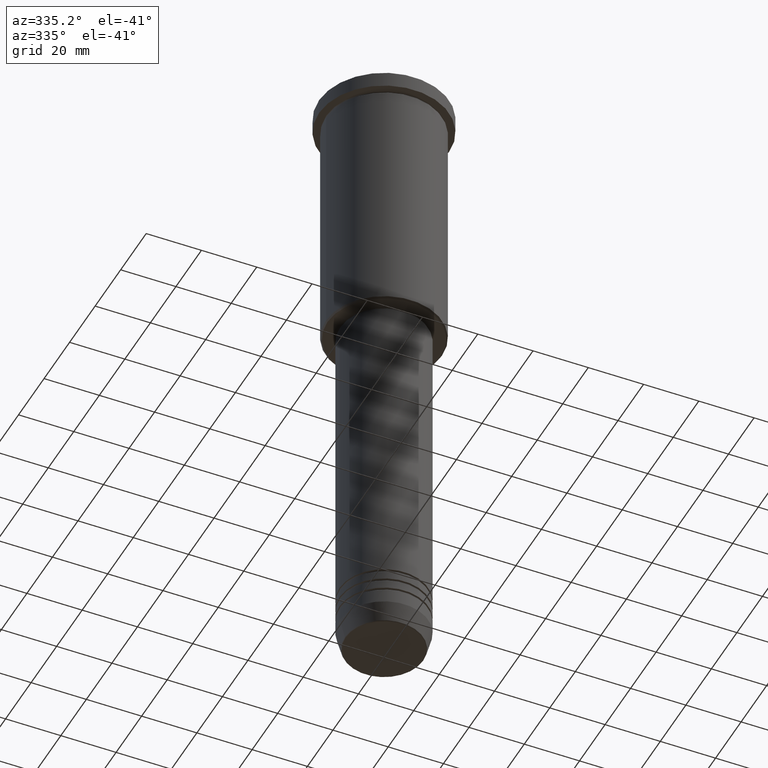
[diagram: clean part render]
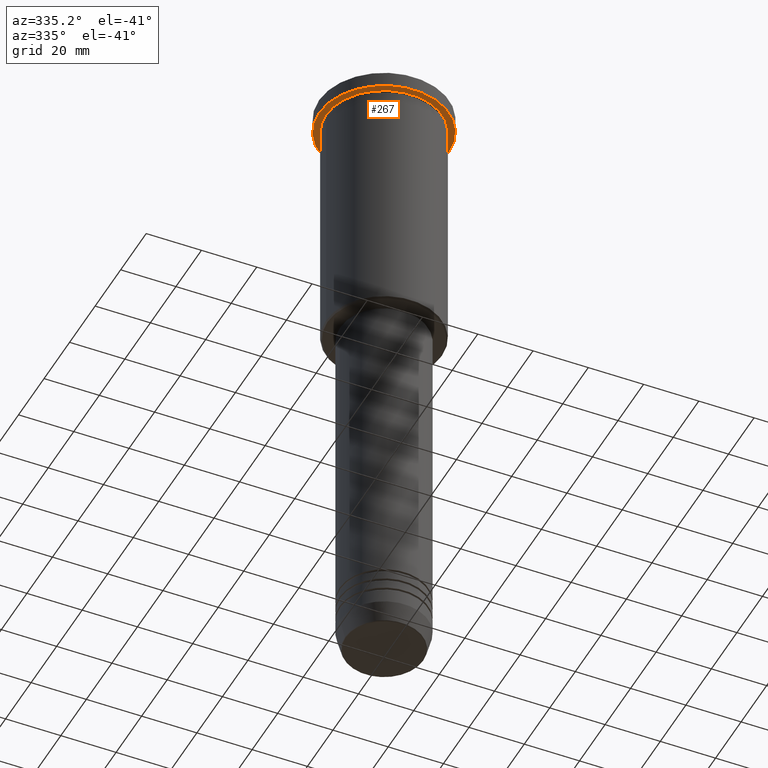
[diagram: same view with one face highlighted and labeled with its STEP entity id]
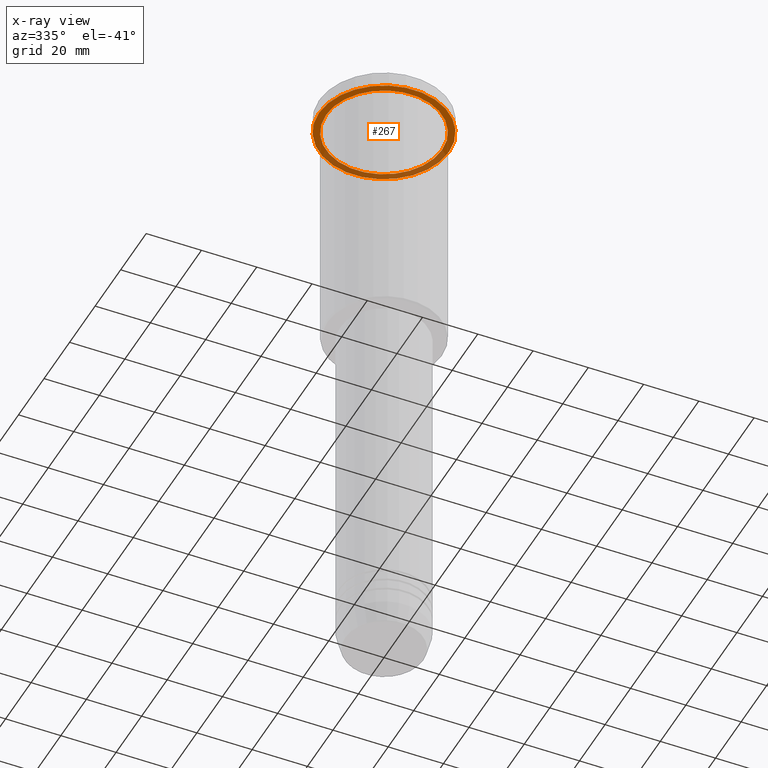
[diagram: x-ray of the same camera — body ghosted, the highlighted face saturated]
A machine part, auxiliary view. The second image highlights one B-rep face of the part: STEP entity #267.
The next image is the same camera in x-ray: the body ghosted, the highlighted face saturated — about 35% of this face is hidden behind the body in this view.
In plain terms, the highlighted planar face has unit normal (0, 0, -1).
Its self-contained STEP definition (entity closure, byte-faithful):
#21 = EDGE_LOOP ( 'NONE', ( #1097, #556 ) ) ;
#24 = PLANE ( 'NONE',  #501 ) ;
#116 = FACE_OUTER_BOUND ( 'NONE', #21, .T. ) ;
#143 = DIRECTION ( 'NONE',  ( 1.000000000000000000, 0.000000000000000000, 0.000000000000000000 ) ) ;
#181 = EDGE_CURVE ( 'NONE', #731, #714, #1055, .T. ) ;
#219 = DIRECTION ( 'NONE',  ( -0.000000000000000000, -0.000000000000000000, 1.000000000000000000 ) ) ;
#257 = CARTESIAN_POINT ( 'NONE',  ( 23.50000000000000000, 0.000000000000000000, -5.999999999999993783 ) ) ;
#261 = AXIS2_PLACEMENT_3D ( 'NONE', #1061, #219, #319 ) ;
#267 = ADVANCED_FACE ( 'NONE', ( #554, #116 ), #24, .T. ) ;
#319 = DIRECTION ( 'NONE',  ( -1.000000000000000000, 0.000000000000000000, 0.000000000000000000 ) ) ;
#349 = ORIENTED_EDGE ( 'NONE', *, *, #495, .T. ) ;
#401 = CIRCLE ( 'NONE', #925, 23.50000000000000000 ) ;
#495 = EDGE_CURVE ( 'NONE', #714, #731, #636, .T. ) ;
#501 = AXIS2_PLACEMENT_3D ( 'NONE', #1028, #660, #764 ) ;
#526 = CARTESIAN_POINT ( 'NONE',  ( -23.50000000000000000, 2.877919977996280320E-15, -5.999999999999993783 ) ) ;
#554 = FACE_BOUND ( 'NONE', #1039, .T. ) ;
#556 = ORIENTED_EDGE ( 'NONE', *, *, #1157, .F. ) ;
#614 = DIRECTION ( 'NONE',  ( -0.000000000000000000, -0.000000000000000000, 1.000000000000000000 ) ) ;
#627 = CARTESIAN_POINT ( 'NONE',  ( 0.000000000000000000, 0.000000000000000000, -5.999999999999993783 ) ) ;
#632 = DIRECTION ( 'NONE',  ( -0.000000000000000000, -0.000000000000000000, 1.000000000000000000 ) ) ;
#636 = CIRCLE ( 'NONE', #261, 21.00000000000000000 ) ;
#658 = VERTEX_POINT ( 'NONE', #257 ) ;
#660 = DIRECTION ( 'NONE',  ( 0.000000000000000000, 0.000000000000000000, -1.000000000000000000 ) ) ;
#684 = EDGE_CURVE ( 'NONE', #658, #848, #401, .T. ) ;
#714 = VERTEX_POINT ( 'NONE', #1098 ) ;
#717 = CARTESIAN_POINT ( 'NONE',  ( 0.000000000000000000, 0.000000000000000000, -5.999999999999993783 ) ) ;
#731 = VERTEX_POINT ( 'NONE', #850 ) ;
#764 = DIRECTION ( 'NONE',  ( -1.000000000000000000, 0.000000000000000000, -0.000000000000000000 ) ) ;
#779 = CARTESIAN_POINT ( 'NONE',  ( 0.000000000000000000, 0.000000000000000000, -5.999999999999993783 ) ) ;
#848 = VERTEX_POINT ( 'NONE', #526 ) ;
#850 = CARTESIAN_POINT ( 'NONE',  ( 21.00000000000000000, 2.571758278209441661E-15, -5.999999999999992895 ) ) ;
#852 = AXIS2_PLACEMENT_3D ( 'NONE', #717, #895, #1168 ) ;
#895 = DIRECTION ( 'NONE',  ( -0.000000000000000000, -0.000000000000000000, 1.000000000000000000 ) ) ;
#925 = AXIS2_PLACEMENT_3D ( 'NONE', #627, #632, #981 ) ;
#928 = AXIS2_PLACEMENT_3D ( 'NONE', #779, #614, #143 ) ;
#981 = DIRECTION ( 'NONE',  ( 1.000000000000000000, 0.000000000000000000, 0.000000000000000000 ) ) ;
#1028 = CARTESIAN_POINT ( 'NONE',  ( 0.000000000000000000, 23.50000000000000000, -5.999999999999993783 ) ) ;
#1039 = EDGE_LOOP ( 'NONE', ( #349, #1174 ) ) ;
#1055 = CIRCLE ( 'NONE', #852, 21.00000000000000000 ) ;
#1061 = CARTESIAN_POINT ( 'NONE',  ( 0.000000000000000000, 0.000000000000000000, -5.999999999999993783 ) ) ;
#1097 = ORIENTED_EDGE ( 'NONE', *, *, #684, .F. ) ;
#1098 = CARTESIAN_POINT ( 'NONE',  ( -21.00000000000000000, 0.000000000000000000, -5.999999999999992895 ) ) ;
#1142 = CIRCLE ( 'NONE', #928, 23.50000000000000000 ) ;
#1157 = EDGE_CURVE ( 'NONE', #848, #658, #1142, .T. ) ;
#1168 = DIRECTION ( 'NONE',  ( -1.000000000000000000, 0.000000000000000000, 0.000000000000000000 ) ) ;
#1174 = ORIENTED_EDGE ( 'NONE', *, *, #181, .T. ) ;